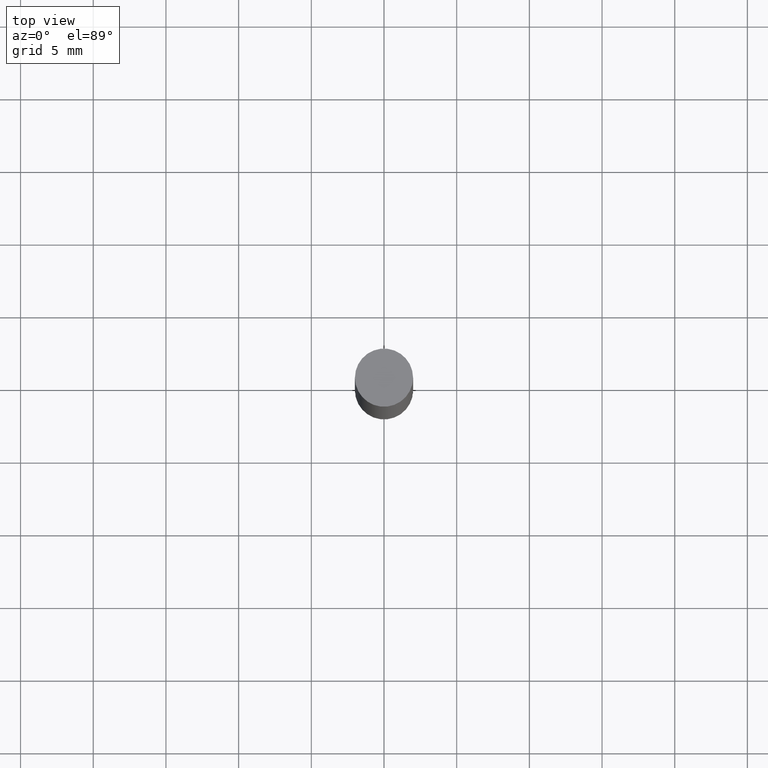
[diagram: clean part render]
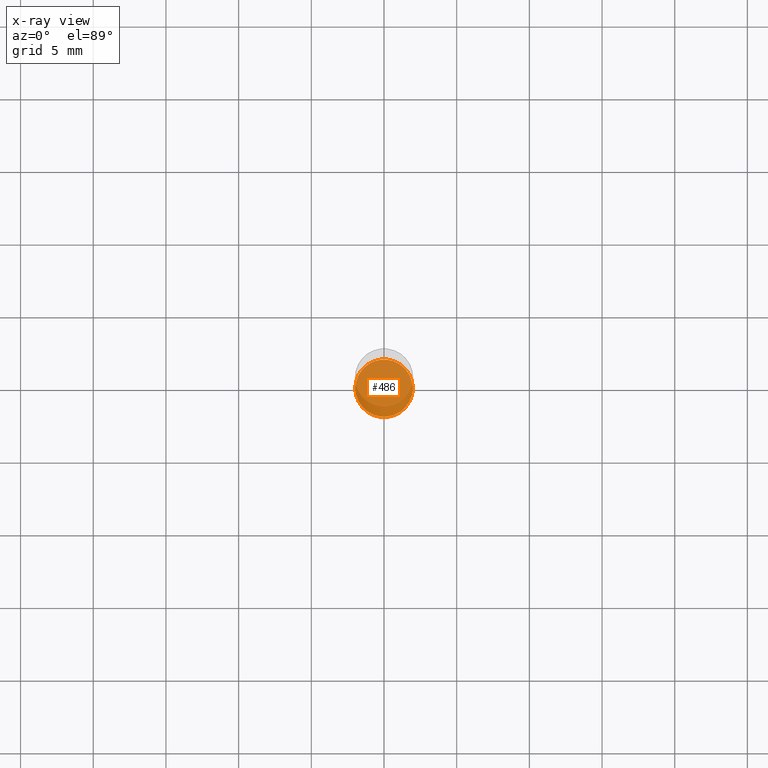
[diagram: x-ray — body ghosted, one internal face saturated and labeled with its STEP entity id]
A machine part, top view, then the same camera in x-ray: the body is ghosted and one INTERNAL B-rep face — a face not visible from any outside direction — is saturated and labeled: STEP entity #486.
In plain terms, the highlighted planar face has unit normal (-0, 0, 1).
Its self-contained STEP definition (entity closure, byte-faithful):
#22 = AXIS2_PLACEMENT_3D ( 'NONE', #442, #593, #283 ) ;
#77 = FACE_OUTER_BOUND ( 'NONE', #574, .T. ) ;
#95 = CARTESIAN_POINT ( 'NONE',  ( 0.07774999999999999967, -6.316089741967247614E-15, -1.653499999999999970 ) ) ;
#119 = ORIENTED_EDGE ( 'NONE', *, *, #372, .F. ) ;
#187 = CARTESIAN_POINT ( 'NONE',  ( -0.07774999999999999967, -5.215418962375440876E-15, -1.653499999999999970 ) ) ;
#193 = ORIENTED_EDGE ( 'NONE', *, *, #540, .F. ) ;
#236 = DIRECTION ( 'NONE',  ( -2.445468806185136597E-29, 3.491481338843145583E-15, 1.000000000000000000 ) ) ;
#283 = DIRECTION ( 'NONE',  ( 1.000000000000000000, -6.982962677686265922E-15, 4.876176775795935793E-29 ) ) ;
#372 = EDGE_CURVE ( 'NONE', #418, #417, #481, .T. ) ;
#403 = DIRECTION ( 'NONE',  ( 1.000000000000000000, -6.982962677686261977E-15, 0.000000000000000000 ) ) ;
#417 = VERTEX_POINT ( 'NONE', #95 ) ;
#418 = VERTEX_POINT ( 'NONE', #187 ) ;
#442 = CARTESIAN_POINT ( 'NONE',  ( 4.043582671027123201E-29, -5.773164393777141072E-15, -1.653499999999999970 ) ) ;
#466 = DIRECTION ( 'NONE',  ( -2.445468806185136597E-29, 3.491481338843145583E-15, 1.000000000000000000 ) ) ;
#481 = CIRCLE ( 'NONE', #555, 0.07774999999999999967 ) ;
#486 = ADVANCED_FACE ( 'NONE', ( #77 ), #533, .F. ) ;
#503 = DIRECTION ( 'NONE',  ( 1.000000000000000000, -6.982962677686261977E-15, 0.000000000000000000 ) ) ;
#509 = CIRCLE ( 'NONE', #557, 0.07774999999999999967 ) ;
#533 = PLANE ( 'NONE',  #22 ) ;
#540 = EDGE_CURVE ( 'NONE', #417, #418, #509, .T. ) ;
#555 = AXIS2_PLACEMENT_3D ( 'NONE', #669, #236, #503 ) ;
#557 = AXIS2_PLACEMENT_3D ( 'NONE', #616, #466, #403 ) ;
#574 = EDGE_LOOP ( 'NONE', ( #193, #119 ) ) ;
#593 = DIRECTION ( 'NONE',  ( -2.438088387897960049E-29, 3.491481338843145188E-15, 1.000000000000000000 ) ) ;
#616 = CARTESIAN_POINT ( 'NONE',  ( 4.043582671027123201E-29, -5.773164393777141072E-15, -1.653499999999999970 ) ) ;
#669 = CARTESIAN_POINT ( 'NONE',  ( 4.043582671027123201E-29, -5.773164393777141072E-15, -1.653499999999999970 ) ) ;